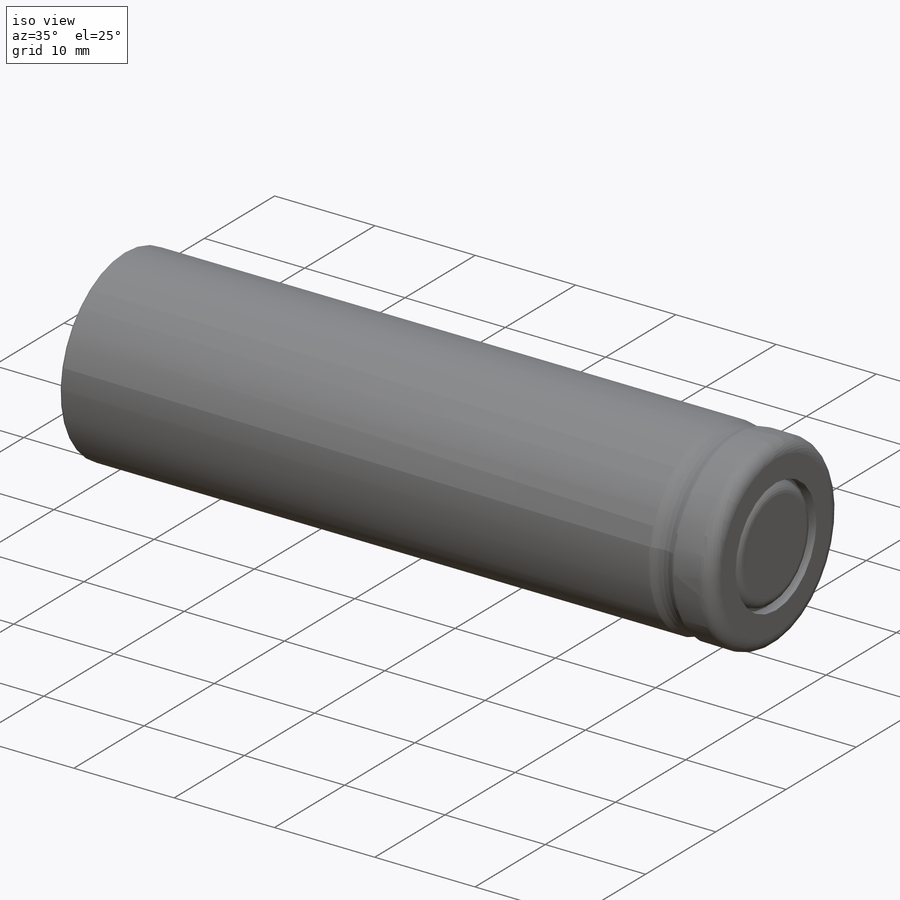
[diagram: iso view]
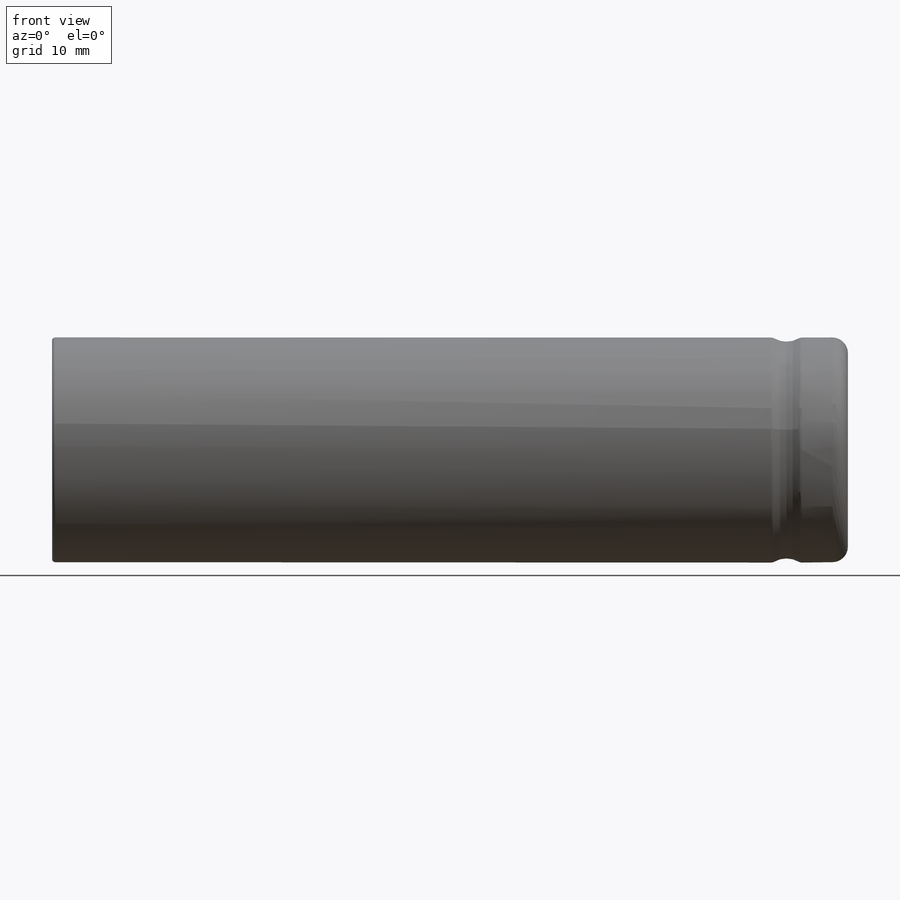
[diagram: front view]
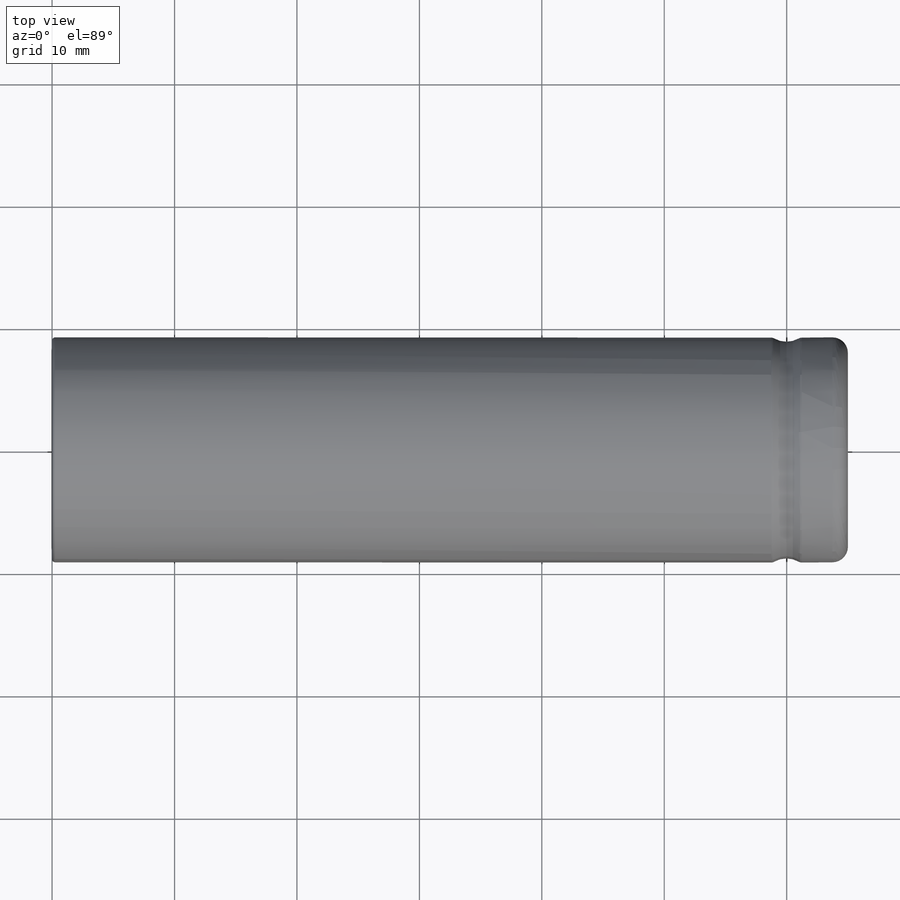
[diagram: top view]
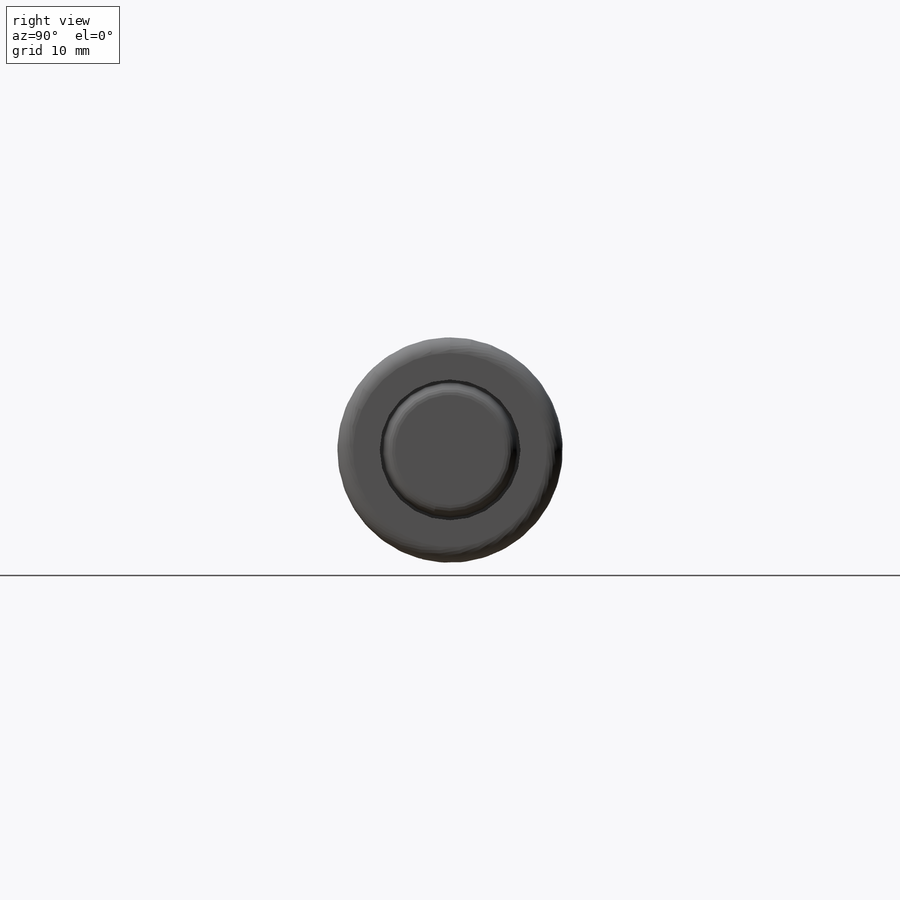
[diagram: right view]
SOLIDWORKS PART (.sldprt)
format: sldprt  version: not decoded by parser v0  size: 279,040 bytes
history: native  units: mm
features: sketch x5, cut_extrude x2, material x1, revolve x1, cut_revolve x1, extrude x1, fillet x1 (+14 scaffold rows collapsed)
feature tree (26):
  scaffold x14  (default folders/planes/origin — collapsed)
  material  "Material <not specified>"
  sketch  "Sketch1"  dims[D1=0.254mm D4=1.27mm D2=65.0mm D3=9.2mm]
  revolve  "base"  Angle=360deg
  sketch  "Sketch2"  dims[D1=0.5mm D3=2.0mm D2=2.5mm D4=2.5mm]
  cut_revolve  "+ notch"  Angle=360deg
  sketch  "Sketch3"  dims[D1=11.5mm]
  cut_extrude  "Extrude1"  Depth=1.016mm
  sketch  "Sketch4"  dims[D1=11.0mm]
  extrude  "Extrude3"  Depth=0.127mm
  sketch  "Sketch5"  dims[D1=15.0mm]
  cut_extrude  "Extrude4"  Depth=0.0254mm
  fillet  "Fillet1"  Radius=1mm
decode coverage: 11 of 11 modeling features carry decoded parameters
note: suppression state not decoded; provenance and decode notes live in map.json
